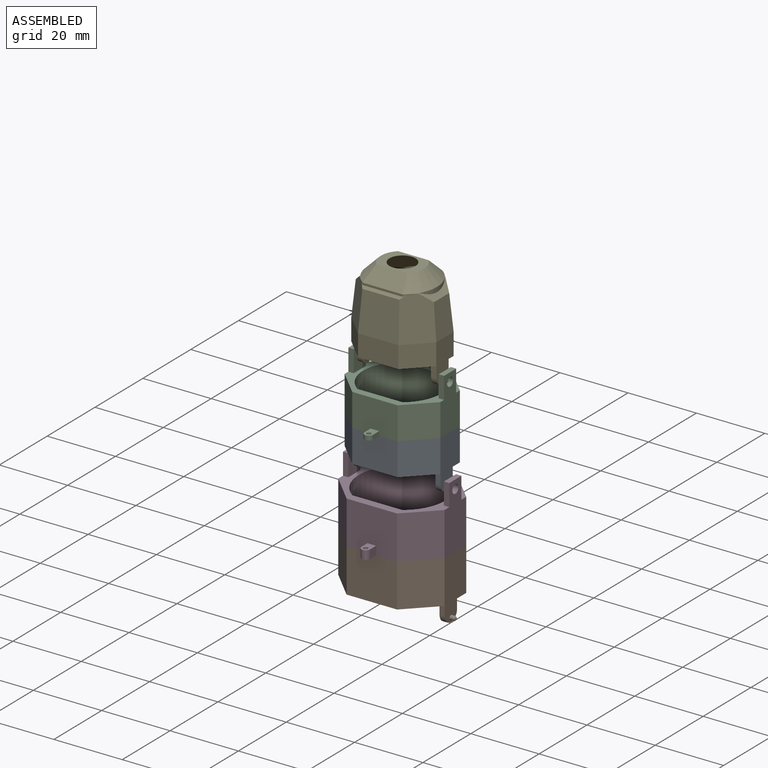
[diagram: assembled view]
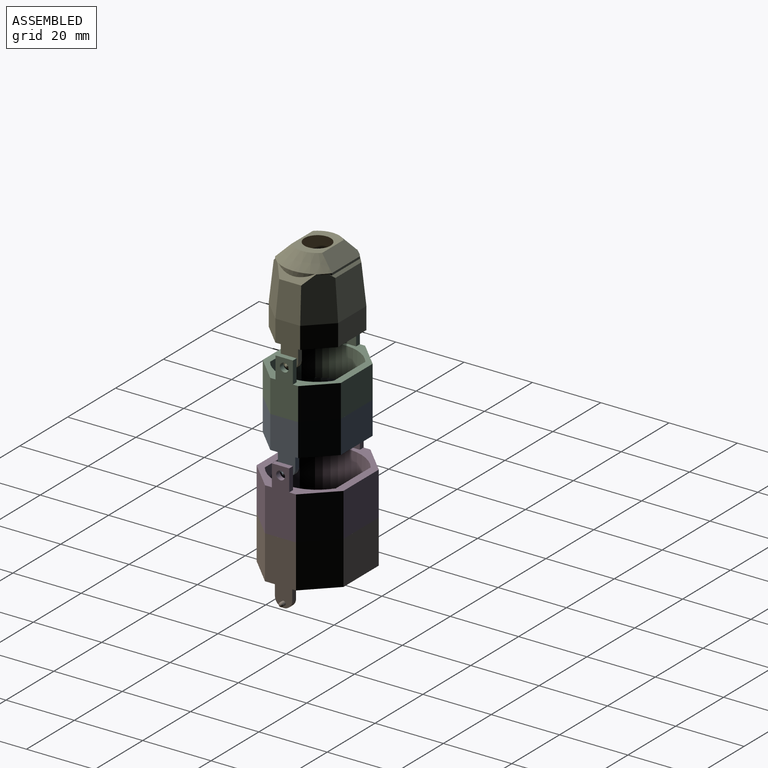
[diagram: assembled view, second angle]
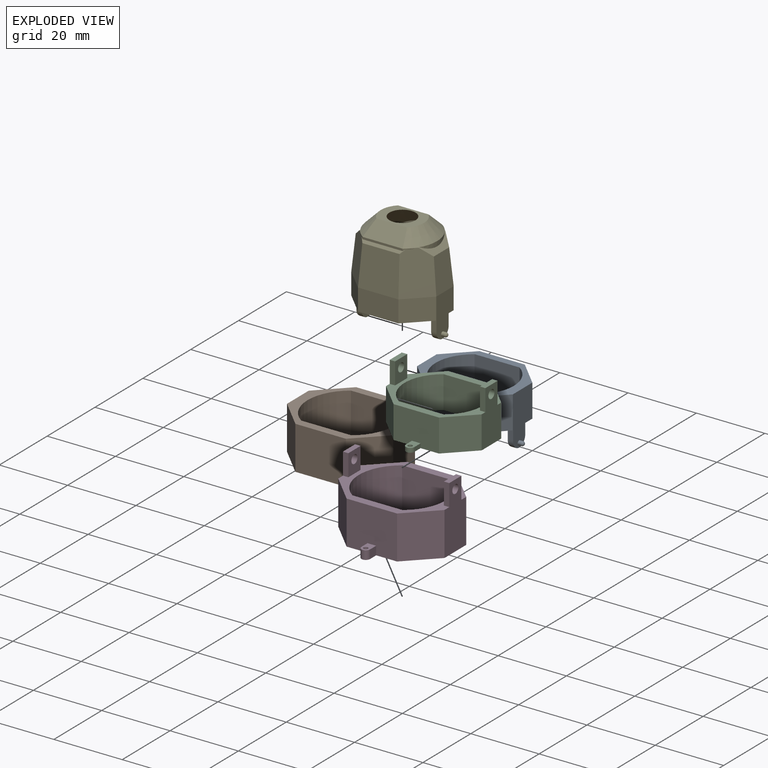
[diagram: exploded view]
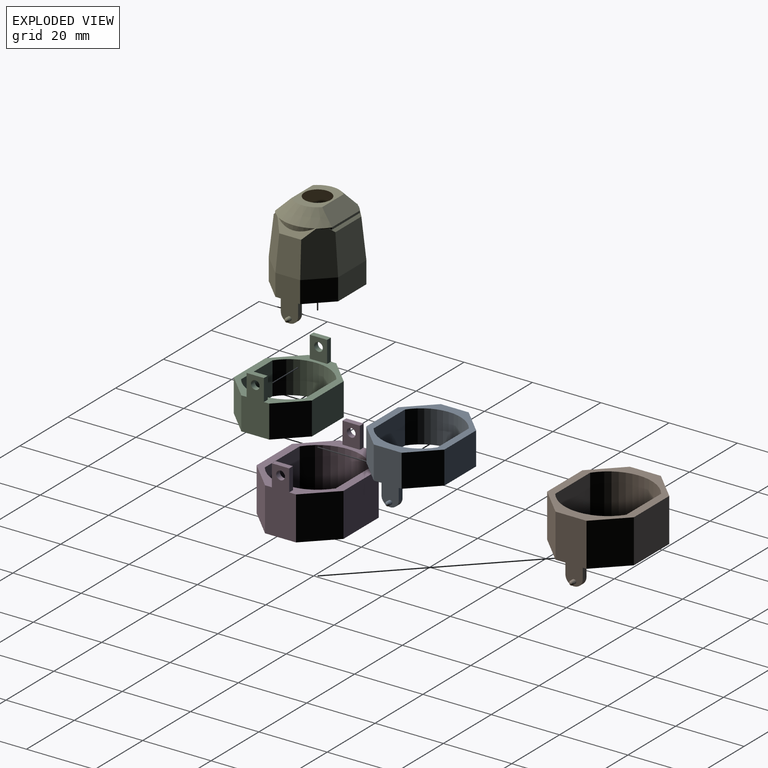
[diagram: exploded view, second angle]
ASSEMBLY  parts=5 mates=4
PART A: 28 faces, bbox 29.1x22.9x15.9 mm
  f0: plane 9.53x7.35mm, normal (-0.71,0.71,0), area 99mm2, adj f1,f11,f12,f27
  f1: plane 9.53x8.17mm, normal (-1,0,0), area 77.8mm2, adj f0,f2,f12,f27
  f2: plane 9.53x7.35mm, normal (-0.71,-0.71,0), area 99mm2, adj f1,f3,f12,f27
  f3: plane 13.3x9.53mm, normal (0,-1,0), area 126.7mm2, adj f2,f4,f12,f27
  f4: plane 9.53x7.35mm, normal (0.71,-0.71,0), area 99mm2, adj f3,f5,f12,f27
  f5: plane 9.53x8.17mm, normal (1,0,0), area 77.8mm2, adj f4,f6,f12,f27
  f6: plane 9.53x7.35mm, normal (0.71,0.71,0), area 99mm2, adj f5,f11,f12,f27
  f7: plane 13.14x9.53mm, normal (0,1,0), area 125.2mm2, adj f8,f10,f12,f27
  f8: cylinder r=11.43mm len=18.7mm, axis (0,0,-1), area 208.6mm2, adj f7,f9,f12,f27
  f9: plane 13.14x9.53mm, normal (0,-1,0), area 125.2mm2, adj f8,f10,f12,f27
  f10: cylinder r=11.43mm len=18.7mm, axis (0,0,-1), area 208.6mm2, adj f7,f9,f12,f27
  f11: plane 13.3x9.53mm, normal (0,1,0), area 126.7mm2, adj f0,f6,f12,f27
  f12: plane 28x22.86mm, normal (0,0,-1), area 142.8mm2, adj f0,f1,f2,f3,f4,f5,f6,f7
  f13: plane 6.35x5.08mm, normal (-1,0,0), area 29.5mm2, adj f12,f14,f16,f18
  f14: plane 3.81x1.57mm, normal (0,-1,0), area 6mm2, adj f12,f13,f15,f18
  f15: plane 6.35x5.08mm, normal (1,0,0), area 28.2mm2, adj f12,f14,f16,f17,f18
  f16: plane 3.81x1.57mm, normal (0,1,0), area 6mm2, adj f12,f13,f15,f18
  f17: cylinder r=0.64mm len=1.27mm, axis (-1,0,0), area 3.7mm2, adj f15,f19
  f18: cylinder r=2.54mm len=5.08mm, axis (1,0,0), area 12.5mm2, adj f13,f14,f15,f16
  f19: sphere r=0.64mm, area 2.5mm2, adj f17
  f20: sphere r=0.64mm, area 2.5mm2, adj f22
  f21: cylinder r=2.54mm len=5.08mm, axis (-1,0,0), area 12.5mm2, adj f23,f24,f25,f26
  f22: cylinder r=0.64mm len=1.27mm, axis (1,0,0), area 3.7mm2, adj f20,f24
  f23: plane 3.81x1.57mm, normal (0,1,0), area 6mm2, adj f12,f21,f24,f26
  f24: plane 6.35x5.08mm, normal (-1,0,0), area 28.2mm2, adj f12,f21,f22,f23,f25
  f25: plane 3.81x1.57mm, normal (0,-1,0), area 6mm2, adj f12,f21,f24,f26
  f26: plane 6.35x5.08mm, normal (1,0,0), area 29.5mm2, adj f12,f21,f23,f25
  f27: plane 28x22.86mm, normal (0,0,1), area 158.7mm2, adj f0,f1,f2,f3,f4,f5,f6,f7
PART B: 28 faces, bbox 31.7x25.4x19.1 mm
  f0: plane 12.7x8.16mm, normal (-0.71,0.71,0), area 146.6mm2, adj f1,f11,f12,f27
  f1: plane 12.7x9.07mm, normal (-1,0,0), area 115.2mm2, adj f0,f2,f12,f27
  f2: plane 12.7x8.16mm, normal (-0.71,-0.71,0), area 146.6mm2, adj f1,f3,f12,f27
  f3: plane 14.78x12.7mm, normal (0,-1,0), area 187.7mm2, adj f2,f4,f12,f27
  f4: plane 12.7x8.16mm, normal (0.71,-0.71,0), area 146.6mm2, adj f3,f5,f12,f27
  f5: plane 12.7x9.07mm, normal (1,0,0), area 115.2mm2, adj f4,f6,f12,f27
  f6: plane 12.7x8.16mm, normal (0.71,0.71,0), area 146.6mm2, adj f5,f11,f12,f27
  f7: plane 14.6x12.7mm, normal (0,1,0), area 185.5mm2, adj f8,f10,f12,f27
  f8: cylinder r=12.7mm len=20.78mm, axis (0,0,-1), area 309.1mm2, adj f7,f9,f12,f27
  f9: plane 14.6x12.7mm, normal (0,-1,0), area 185.5mm2, adj f8,f10,f12,f27
  f10: cylinder r=12.7mm len=20.78mm, axis (0,0,-1), area 309.1mm2, adj f7,f9,f12,f27
  f11: plane 14.78x12.7mm, normal (0,1,0), area 187.7mm2, adj f0,f6,f12,f27
  f12: plane 31.11x25.4mm, normal (0,0,-1), area 180mm2, adj f0,f1,f2,f3,f4,f5,f6,f7
  f13: plane 6.35x5.08mm, normal (-1,0,0), area 29.5mm2, adj f12,f14,f16,f18
  f14: plane 3.81x1.57mm, normal (0,-1,0), area 6mm2, adj f12,f13,f15,f18
  f15: plane 6.35x5.08mm, normal (1,0,0), area 28.2mm2, adj f12,f14,f16,f17,f18
  f16: plane 3.81x1.57mm, normal (0,1,0), area 6mm2, adj f12,f13,f15,f18
  f17: cylinder r=0.64mm len=1.27mm, axis (-1,0,0), area 3.7mm2, adj f15,f19
  f18: cylinder r=2.54mm len=5.08mm, axis (1,0,0), area 12.5mm2, adj f13,f14,f15,f16
  f19: sphere r=0.64mm, area 2.5mm2, adj f17
  f20: sphere r=0.64mm, area 2.5mm2, adj f22
  f21: cylinder r=2.54mm len=5.08mm, axis (-1,0,0), area 12.5mm2, adj f23,f24,f25,f26
  f22: cylinder r=0.64mm len=1.27mm, axis (1,0,0), area 3.7mm2, adj f20,f24
  f23: plane 3.81x1.57mm, normal (0,1,0), area 6mm2, adj f12,f21,f24,f26
  f24: plane 6.35x5.08mm, normal (-1,0,0), area 28.2mm2, adj f12,f21,f22,f23,f25
  f25: plane 3.81x1.57mm, normal (0,-1,0), area 6mm2, adj f12,f21,f24,f26
  f26: plane 6.35x5.08mm, normal (1,0,0), area 29.5mm2, adj f12,f21,f23,f25
  f27: plane 31.11x25.4mm, normal (0,0,1), area 195.9mm2, adj f0,f1,f2,f3,f4,f5,f6,f7
PART C: 29 faces, bbox 28x26.7x15.9 mm
  f0: plane 9.53x7.35mm, normal (-0.71,0.71,0), area 99mm2, adj f1,f9,f11,f23
  f1: plane 15.88x8.17mm, normal (-1,0,0), area 105mm2, adj f0,f2,f11,f19,f20,f21,f22,f23
  f2: plane 9.53x7.35mm, normal (-0.71,-0.71,0), area 99mm2, adj f1,f3,f11,f23
  f3: plane 13.3x9.53mm, normal (0,-1,0), area 123.5mm2, adj f2,f4,f11,f23,f24,f26,f28
  f4: plane 9.53x7.35mm, normal (0.71,-0.71,0), area 99mm2, adj f3,f5,f11,f23
  f5: plane 15.88x8.17mm, normal (1,0,0), area 105mm2, adj f4,f6,f11,f14,f15,f16,f17,f23
  f6: plane 9.53x7.35mm, normal (0.71,0.71,0), area 99mm2, adj f5,f9,f11,f23
  f7: cylinder r=11.43mm len=18.7mm, axis (0,0,-1), area 208.6mm2, adj f10,f11,f12,f23
  f8: cylinder r=11.43mm len=18.7mm, axis (0,0,-1), area 208.6mm2, adj f10,f11,f12,f23
  f9: plane 13.3x9.53mm, normal (0,1,0), area 126.7mm2, adj f0,f6,f11,f23
  f10: plane 13.14x9.53mm, normal (0,-1,0), area 125.2mm2, adj f7,f8,f11,f23
  f11: plane 28x22.86mm, normal (0,0,1), area 142.8mm2, adj f0,f1,f2,f3,f4,f5,f6,f7
  f12: plane 13.14x9.53mm, normal (0,1,0), area 125.2mm2, adj f7,f8,f11,f23
  f13: plane 6.35x5.08mm, normal (-1,0,0), area 27.2mm2, adj f11,f14,f15,f16,f17
  f14: plane 6.35x1.57mm, normal (0,-1,0), area 10mm2, adj f5,f11,f13,f16
  f15: plane 6.35x1.57mm, normal (0,1,0), area 10mm2, adj f5,f11,f13,f16
  f16: plane 5.08x1.57mm, normal (0,0,1), area 8mm2, adj f5,f13,f14,f15
  f17: cylinder r=1.27mm len=2.54mm, axis (1,0,0), area 12.5mm2, adj f5,f13
  f18: plane 6.35x5.08mm, normal (1,0,0), area 27.2mm2, adj f11,f19,f20,f21,f22
  f19: plane 6.35x1.57mm, normal (0,-1,0), area 10mm2, adj f1,f11,f18,f21
  f20: plane 6.35x1.57mm, normal (0,1,0), area 10mm2, adj f1,f11,f18,f21
  f21: plane 5.08x1.57mm, normal (0,0,1), area 8mm2, adj f1,f18,f19,f20
  f22: cylinder r=1.27mm len=2.54mm, axis (-1,0,0), area 12.5mm2, adj f1,f18
  f23: plane 28x26.67mm, normal (0,0,-1), area 166.4mm2, adj f0,f1,f2,f3,f4,f5,f6,f7
  f24: plane 2.54x1.27mm, normal (1,0,0), area 3.2mm2, adj f3,f23,f25,f28
  f25: cylinder r=1.27mm len=2.54mm, axis (0,0,-1), area 5.1mm2, adj f23,f24,f26,f28
  f26: plane 2.54x1.27mm, normal (-1,0,0), area 3.2mm2, adj f3,f23,f25,f28
  f27: cylinder r=0.64mm len=1.27mm, axis (0,0,-1), area 5.1mm2, adj f23,f28
  f28: plane 3.81x2.54mm, normal (0,0,1), area 7.7mm2, adj f3,f24,f25,f26,f27
PART D: 29 faces, bbox 31.1x29.2x19.1 mm
  f0: plane 12.7x8.16mm, normal (-0.71,0.71,0), area 146.6mm2, adj f1,f11,f12,f23
  f1: plane 19.05x9.07mm, normal (-1,0,0), area 142.4mm2, adj f0,f2,f12,f19,f20,f21,f22,f23
  f2: plane 12.7x8.16mm, normal (-0.71,-0.71,0), area 146.6mm2, adj f1,f3,f12,f23
  f3: plane 14.78x12.7mm, normal (0,-1,0), area 181.2mm2, adj f2,f4,f12,f23,f24,f26,f28
  f4: plane 12.7x8.16mm, normal (0.71,-0.71,0), area 146.6mm2, adj f3,f5,f12,f23
  f5: plane 19.05x9.07mm, normal (1,0,0), area 142.4mm2, adj f4,f6,f12,f14,f15,f16,f17,f23
  f6: plane 12.7x8.16mm, normal (0.71,0.71,0), area 146.6mm2, adj f5,f11,f12,f23
  f7: plane 14.6x12.7mm, normal (0,1,0), area 185.5mm2, adj f8,f10,f12,f23
  f8: cylinder r=12.7mm len=20.78mm, axis (0,0,-1), area 309.1mm2, adj f7,f9,f12,f23
  f9: plane 14.6x12.7mm, normal (0,-1,0), area 185.5mm2, adj f8,f10,f12,f23
  f10: cylinder r=12.7mm len=20.78mm, axis (0,0,-1), area 309.1mm2, adj f7,f9,f12,f23
  f11: plane 14.78x12.7mm, normal (0,1,0), area 187.7mm2, adj f0,f6,f12,f23
  f12: plane 31.11x25.4mm, normal (0,0,1), area 180mm2, adj f0,f1,f2,f3,f4,f5,f6,f7
  f13: plane 6.35x5.08mm, normal (-1,0,0), area 27.2mm2, adj f12,f14,f15,f16,f17
  f14: plane 6.35x1.57mm, normal (0,-1,0), area 10mm2, adj f5,f12,f13,f16
  f15: plane 6.35x1.57mm, normal (0,1,0), area 10mm2, adj f5,f12,f13,f16
  f16: plane 5.08x1.57mm, normal (0,0,1), area 8mm2, adj f5,f13,f14,f15
  f17: cylinder r=1.27mm len=2.54mm, axis (1,0,0), area 12.5mm2, adj f5,f13
  f18: plane 6.35x5.08mm, normal (1,0,0), area 27.2mm2, adj f12,f19,f20,f21,f22
  f19: plane 6.35x1.57mm, normal (0,-1,0), area 10mm2, adj f1,f12,f18,f21
  f20: plane 6.35x1.57mm, normal (0,1,0), area 10mm2, adj f1,f12,f18,f21
  f21: plane 5.08x1.57mm, normal (0,0,1), area 8mm2, adj f1,f18,f19,f20
  f22: cylinder r=1.27mm len=2.54mm, axis (-1,0,0), area 12.5mm2, adj f1,f18
  f23: plane 31.11x29.21mm, normal (0,0,-1), area 203.7mm2, adj f0,f1,f2,f3,f4,f5,f6,f7
  f24: plane 2.54x2.54mm, normal (1,0,0), area 6.5mm2, adj f3,f23,f25,f28
  f25: cylinder r=1.27mm len=2.54mm, axis (0,0,-1), area 10.1mm2, adj f23,f24,f26,f28
  f26: plane 2.54x2.54mm, normal (-1,0,0), area 6.5mm2, adj f3,f23,f25,f28
  f27: cylinder r=0.64mm len=2.54mm, axis (0,0,-1), area 10.1mm2, adj f23,f28
  f28: plane 3.81x2.54mm, normal (0,0,1), area 7.7mm2, adj f3,f24,f25,f26,f27
PART E: 57 faces, bbox 26.8x20.6x29.5 mm
  f0: plane 18.36x11.68mm, normal (0,1,0), area 207mm2, adj f2,f14,f15,f56
  f1: plane 18.36x11.68mm, normal (0,-1,0), area 207mm2, adj f2,f14,f15,f56
  f2: plane 24.88x20.32mm, normal (0,0,-1), area 109.5mm2, adj f0,f1,f7,f8,f9,f10,f11,f12
  f3: plane 0.96x0.68mm, normal (0,0,1), area 0.1mm2, adj f31,f33,f52
  f4: plane 0.96x0.68mm, normal (0,0,1), area 0.1mm2, adj f24,f32,f55
  f5: plane 0.96x0.68mm, normal (0,0,1), area 0.1mm2, adj f28,f33,f52
  f6: plane 0.96x0.68mm, normal (0,0,1), area 0.1mm2, adj f27,f32,f55
  f7: plane 6.53x6.53mm, normal (-0.71,0.71,0), area 58.7mm2, adj f2,f8,f16,f31
  f8: plane 7.26x6.35mm, normal (-1,0,0), area 46.1mm2, adj f2,f7,f9,f30
  f9: plane 6.53x6.53mm, normal (-0.71,-0.71,0), area 58.7mm2, adj f2,f8,f10,f28
  f10: plane 11.82x6.35mm, normal (0,-1,0), area 75.1mm2, adj f2,f9,f11,f26
  f11: plane 6.53x6.53mm, normal (0.71,-0.71,0), area 58.7mm2, adj f2,f10,f12,f24
  f12: plane 7.26x6.35mm, normal (1,0,0), area 46.1mm2, adj f2,f11,f13,f25
  f13: plane 6.53x6.53mm, normal (0.71,0.71,0), area 58.7mm2, adj f2,f12,f16,f27
  f14: cylinder r=10.16mm len=16.63mm, axis (0,0,-1), area 321.5mm2, adj f0,f1,f2,f56
  f15: cylinder r=10.16mm len=16.63mm, axis (0,0,-1), area 321.5mm2, adj f0,f1,f2,f56
  f16: plane 11.82x6.35mm, normal (0,1,0), area 75.1mm2, adj f2,f7,f13,f29
  f17: plane 6.35x5.08mm, normal (-1,0,0), area 29.5mm2, adj f2,f18,f20,f22
  f18: plane 3.81x1.57mm, normal (0,-1,0), area 6mm2, adj f2,f17,f19,f22
  f19: plane 6.35x5.08mm, normal (1,0,0), area 28.2mm2, adj f2,f18,f20,f21,f22
  f20: plane 3.81x1.57mm, normal (0,1,0), area 6mm2, adj f2,f17,f19,f22
  f21: cylinder r=0.64mm len=1.27mm, axis (-1,0,0), area 3.7mm2, adj f19,f23
  f22: cylinder r=2.54mm len=5.08mm, axis (1,0,0), area 12.5mm2, adj f17,f18,f19,f20
  f23: sphere r=0.64mm, area 2.5mm2, adj f21
  f24: plane 12.7x7.01mm, normal (0.7,-0.7,0.1), area 104.5mm2, adj f4,f11,f25,f26,f32,f35,f43
  f25: plane 10.17x7.26mm, normal (1,0,0.1), area 69.9mm2, adj f12,f24,f27,f32
  f26: plane 11.82x11.44mm, normal (0,-1,0.1), area 130.4mm2, adj f10,f24,f28,f35
  f27: plane 12.7x7.01mm, normal (0.7,0.7,0.1), area 104.5mm2, adj f6,f13,f25,f29,f32,f34,f48
  f28: plane 12.7x7.01mm, normal (-0.7,-0.7,0.1), area 104.5mm2, adj f5,f9,f26,f30,f33,f35,f46
  f29: plane 11.82x11.44mm, normal (0,1,0.1), area 130.4mm2, adj f16,f27,f31,f34
  f30: plane 10.17x7.26mm, normal (-1,0,0.1), area 69.9mm2, adj f8,f28,f31,f33
  f31: plane 12.7x7.01mm, normal (-0.7,0.7,0.1), area 104.5mm2, adj f3,f7,f29,f30,f33,f34,f50
  f32: plane 11.29x2.79mm, normal (0.67,0,0.74), area 18.4mm2, adj f4,f6,f24,f25,f27,f44
  f33: plane 11.29x2.79mm, normal (-0.67,0,0.74), area 18.4mm2, adj f3,f5,f28,f30,f31,f45
  f34: plane 12.94x1.19mm, normal (0,0.67,0.74), area 11mm2, adj f27,f29,f31,f48,f49,f50
  f35: plane 12.94x1.19mm, normal (0,-0.67,0.74), area 11mm2, adj f24,f26,f28,f43,f46,f47
  f36: sphere r=0.64mm, area 2.5mm2, adj f38
  f37: cylinder r=2.54mm len=5.08mm, axis (-1,0,0), area 12.5mm2, adj f39,f40,f41,f42
  f38: cylinder r=0.64mm len=1.27mm, axis (1,0,0), area 3.7mm2, adj f36,f40
  f39: plane 3.81x1.57mm, normal (0,1,0), area 6mm2, adj f2,f37,f40,f42
  f40: plane 6.35x5.08mm, normal (-1,0,0), area 28.2mm2, adj f2,f37,f38,f39,f41
  f41: plane 3.81x1.57mm, normal (0,-1,0), area 6mm2, adj f2,f37,f40,f42
  f42: plane 6.35x5.08mm, normal (1,0,0), area 29.5mm2, adj f2,f37,f39,f41
  f43: cylinder r=10.16mm len=2.11mm, axis (0,0,-1), area 1.3mm2, adj f24,f35,f47,f55
  f44: cylinder r=10.16mm len=10.72mm, axis (0,0,-1), area 10.3mm2, adj f32,f55
  f45: cylinder r=10.16mm len=10.72mm, axis (0,0,-1), area 10.3mm2, adj f33,f52
  f46: cylinder r=10.16mm len=2.11mm, axis (0,0,-1), area 1.3mm2, adj f28,f35,f47,f52
  f47: plane 11.68x0.63mm, normal (0,-1,0), area 7.3mm2, adj f35,f43,f46,f54
  f48: cylinder r=10.16mm len=2.11mm, axis (0,0,-1), area 1.3mm2, adj f27,f34,f49,f55
  f49: plane 11.68x0.63mm, normal (0,1,0), area 7.3mm2, adj f34,f48,f50,f53
  f50: cylinder r=10.16mm len=2.11mm, axis (0,0,-1), area 1.3mm2, adj f31,f34,f49,f52
  f51: plane 12.7x9.01mm, normal (0,0,1), area 58.3mm2, adj f52,f53,f54,f55,f56
  f52: cone r=10.16mm half-angle=45deg, axis (0,0,-1), area 78.3mm2, adj f3,f5,f45,f46,f50,f51,f53,f54
  f53: plane 11.93x4.06mm, normal (0,0.71,0.71), area 55.9mm2, adj f49,f51,f52,f55
  f54: plane 11.93x4.06mm, normal (0,-0.71,0.71), area 55.9mm2, adj f47,f51,f52,f55
  f55: cone r=10.16mm half-angle=45deg, axis (0,0,-1), area 78.3mm2, adj f4,f6,f43,f44,f48,f51,f53,f54
  f56: cone r=2.54mm half-angle=45deg, axis (0,0,-1), area 352.6mm2, adj f0,f1,f14,f15,f51
PLACE A t=(7.45,6.43,1.61)mm
PLACE B t=(7.44,6.43,-32.68)mm
PLACE C t=(7.45,6.43,1.61)mm
PLACE D t=(7.44,6.43,-32.68)mm
PLACE E t=(7.51,6.43,29.55)mm
MATE revolute D.f17 <-> A.f17  axis (1,0,0) through (22.99,6.43,-3.47)mm
MATE revolute E.f21 <-> C.f22  axis (-1,0,0) through (-4.22,6.43,24.47)mm
MATE fastened C.f4 <-> A.f4  axis (0.71,-0.71,0) through (17.77,-1.33,11.13)mm
MATE fastened B.f4 <-> D.f4  axis (0.71,-0.71,0) through (18.91,-2.19,-19.98)mm
